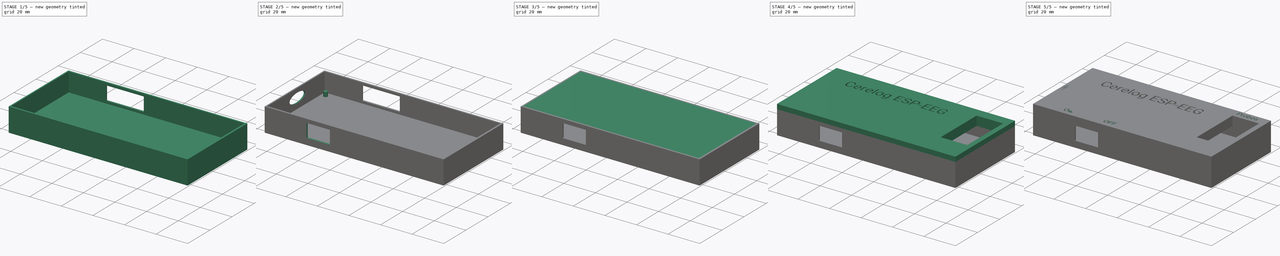
[diagram: build sequence overview — one tinted view per stage of 5, left to right]
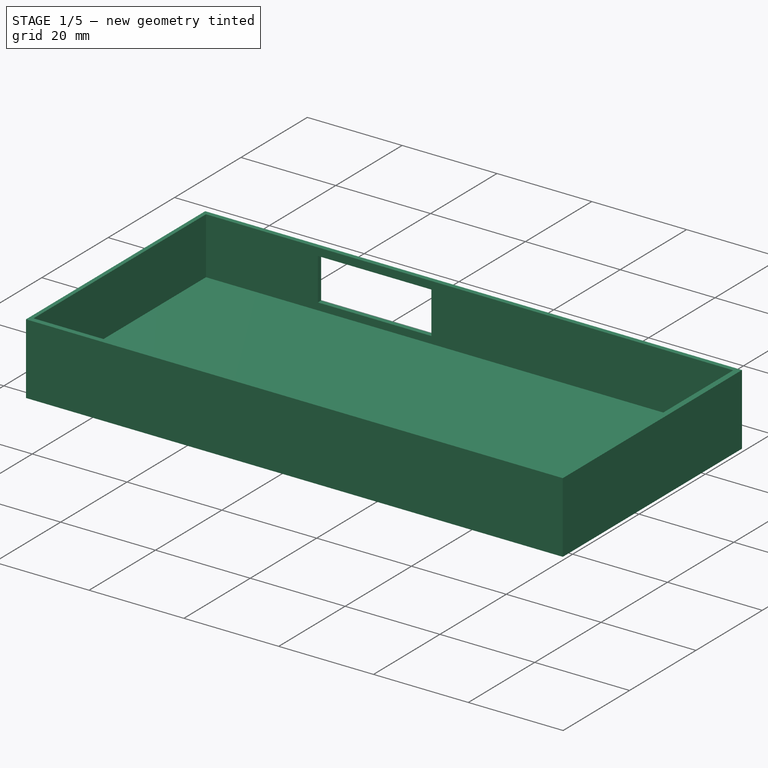
[diagram: stage 1 of 5 — iso view after this stage's code; geometry added in this stage tinted green]
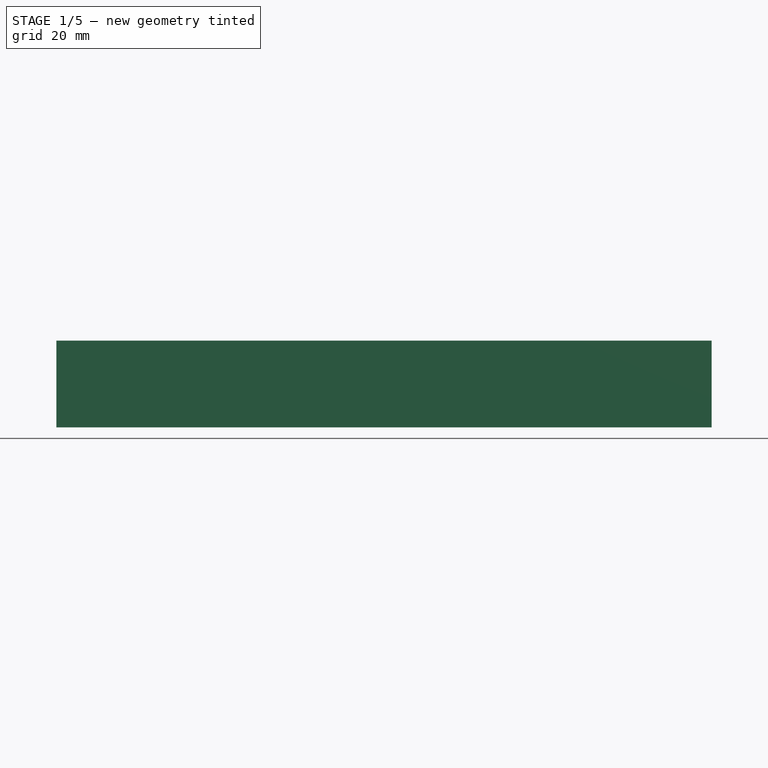
[diagram: stage 1 of 5 — front view after this stage's code; geometry added in this stage tinted green]
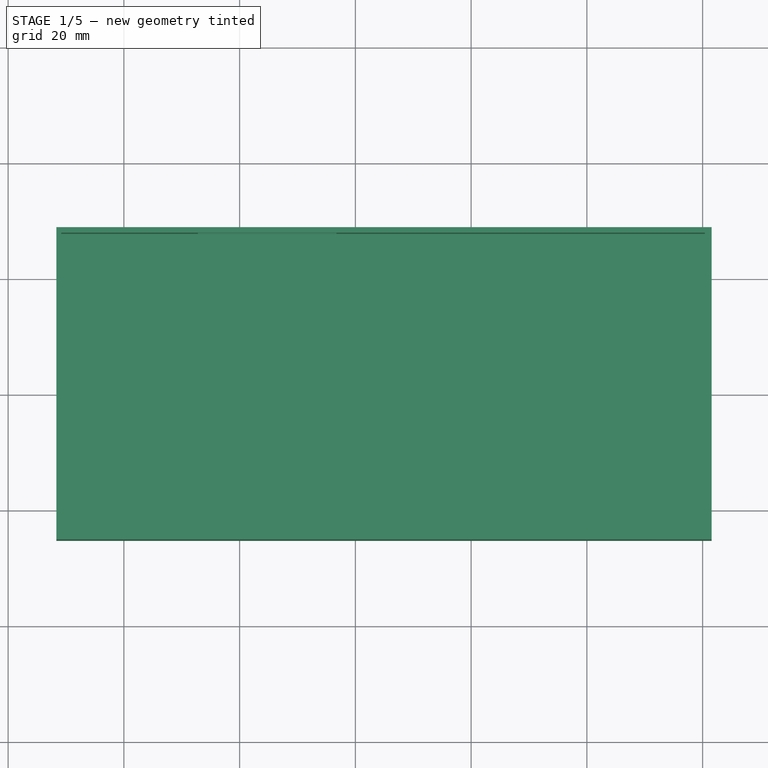
[diagram: stage 1 of 5 — top view after this stage's code; geometry added in this stage tinted green]
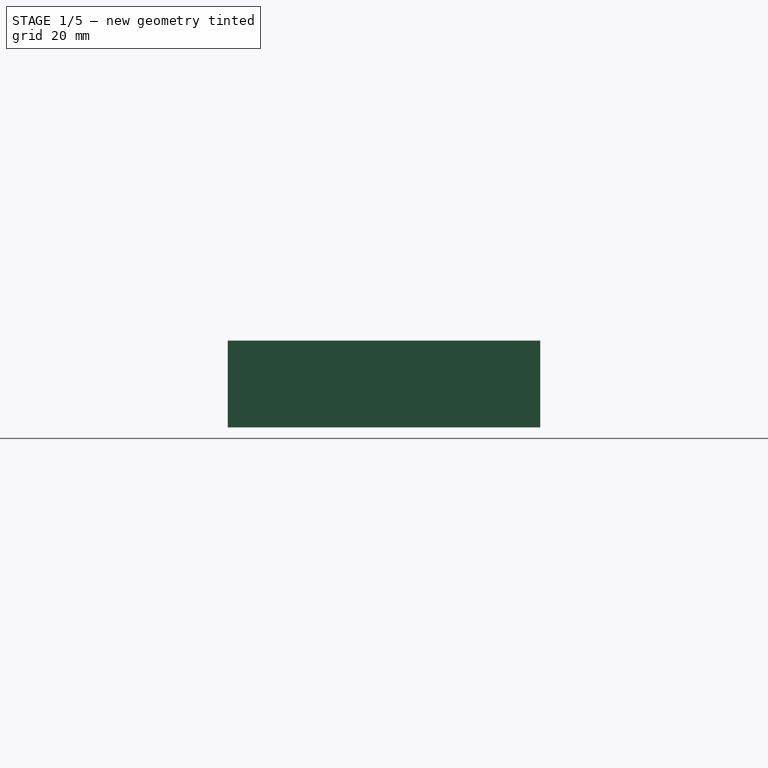
[diagram: stage 1 of 5 — right view after this stage's code; geometry added in this stage tinted green]
FCSTD DOCUMENT  (FreeCAD 1.0R39319 (Git))
Label: Case
License: All rights reserved
LicenseURL: https://en.wikipedia.org/wiki/All_rights_reserved
objects: Sketcher::SketchObject×11, PartDesign::Pocket×10, Part::Feature×6, Part::Part2DObjectPython×6, PartDesign::Pad×5, PartDesign::Body×2, App::Part×1, PartDesign::ShapeBinder×1
note: 82 computed .brp shape members not serialized (recipe doc carries the construction recipe); baked Part::Feature solids carry a one-line shape summary decoded from their .brp

FEATURE [Part::Feature] Part__Feature  label="PZ254V-12-24P"
  Placement = pos=(209.482,-65.94,1.595) rot=(0,0,1;1.5708rad)
  shape: bbox 5 x 30.49 x 11.54 mm, 744 faces (baked)
FEATURE [Part::Feature] Part__Feature001  label="SK22D02L5"
  Placement = pos=(140,-88.25,5.595) rot=(0,0,1;0rad)
  shape: bbox 10.8 x 10.58 x 8.202 mm, 454 faces, 14 solids (baked)
FEATURE [Part::Feature] Part__Feature002  label="ADS1299-6PAG"
  Placement = pos=(182.49,-66.923,1.595) rot=(0,0.707107,0.707107;3.14159rad)
  shape: bbox 12 x 12 x 1.2 mm, 929 faces, 66 solids (baked)
FEATURE [Part::Feature] Part__Feature003  label="ESP32-WROOM-32-N4"
  Placement = pos=(148.1,-52.49,1.595) rot=(0,0,1;0rad)
  shape: bbox 18 x 25.5 x 3.12 mm, 754 faces (baked)
FEATURE [Part::Feature] Part__Feature004  label="TYPE-C-16PIN-2MD-073"
  Placement = pos=(116.532,-69,3.345) rot=(0,0,-1;1.5708rad)
  shape: bbox 7.581 x 8.941 x 4.162 mm, 538 faces, 15 solids (baked)
FEATURE [Part::Feature] Part__Feature005  label="V6_EEG_1_3_Branch_PCB"
  shape: bbox 110.3 x 49.5 x 1.51 mm, 73 faces (baked)
FEATURE [App::Part] model_for_casedev_1  label="model_for_casedev 1"
  Group = -> [Part__Feature,Part__Feature001,Part__Feature002,Part__Feature003,Part__Feature004,Part__Feature005]
  Origin = -> Origin
  Placement = pos=(-163,72,6) rot=(0,0,1;0rad)
FEATURE [Sketcher::SketchObject] Sketch
  ArcFitTolerance = 1e-06
  AttachmentSupport = -> [XY_Plane001]
  FullyConstrained = true
  MakeInternals = false
  MapMode = 5
  sketch-geometry (4):
    g0: LineSegment StartX=-51.6668 StartY=28.7766 StartZ=0 EndX=-51.6668 EndY=-25.2034 EndZ=0
    g1: LineSegment StartX=-51.6668 StartY=-25.2034 StartZ=0 EndX=61.5632 EndY=-25.2034 EndZ=0
    g2: LineSegment StartX=61.5632 StartY=-25.2034 StartZ=0 EndX=61.5632 EndY=28.7766 EndZ=0
    g3: LineSegment StartX=61.5632 StartY=28.7766 StartZ=0 EndX=-51.6668 EndY=28.7766 EndZ=0
  constraints (11):
    c: Coincident(g0,g1)
    c: Coincident(g1,g2)
    c: Coincident(g2,g3)
    c: Coincident(g3,g0)
    c: Vertical(g0)
    c: Vertical(g2)
    c: Horizontal(g1)
    c: Horizontal(g3)
    c: DistanceY(g0,g0) = 53.98
    c: DistanceX(g3,g3) = 113.23
    c: Block(g3)
FEATURE [PartDesign::Pad] Pad
  Direction = (0,0,1)
  Length = 15
  Length2 = 10
  Profile = -> Sketch
  ReferenceAxis = -> Sketch [N_Axis]
  Refine = true
  Suppressed = false
  Type = 0
FEATURE [Sketcher::SketchObject] Sketch001
  ArcFitTolerance = 1e-06
  AttachmentSupport = -> [Pad]
  FullyConstrained = true
  MakeInternals = false
  MapMode = 5
  Placement = pos=(0,0,15) rot=(0,0,1;0rad)
  sketch-geometry (4):
    g0: LineSegment StartX=-50.8309 StartY=27.8122 StartZ=0 EndX=-50.8309 EndY=-24.1321 EndZ=0
    g1: LineSegment StartX=-50.8309 StartY=-24.1321 StartZ=0 EndX=60.3927 EndY=-24.1321 EndZ=0
    g2: LineSegment StartX=60.3927 StartY=-24.1321 StartZ=0 EndX=60.3927 EndY=27.8122 EndZ=0
    g3: LineSegment StartX=60.3927 StartY=27.8122 StartZ=0 EndX=-50.8309 EndY=27.8122 EndZ=0
  constraints (10):
    c: Coincident(g0,g1)
    c: Coincident(g1,g2)
    c: Coincident(g2,g3)
    c: Coincident(g3,g0)
    c: Vertical(g0)
    c: Vertical(g2)
    c: Horizontal(g1)
    c: Horizontal(g3)
    c: Block(g0)
    c: Block(g3)
FEATURE [PartDesign::Pocket] Pocket
  BaseFeature = -> Pad
  Direction = (0,0,-1)
  Length = 12
  Length2 = 5
  Profile = -> Sketch001
  ReferenceAxis = -> Sketch001 [N_Axis]
  Refine = true
  Suppressed = false
  Type = 0
FEATURE [Sketcher::SketchObject] Sketch002
  ArcFitTolerance = 1e-06
  AttachmentSupport = -> [Pocket]
  FullyConstrained = true
  MakeInternals = false
  MapMode = 5
  Placement = pos=(0,28.7766,0) rot=(0,0.707107,0.707107;3.14159rad)
  sketch-geometry (4):
    g0: LineSegment StartX=3.27547 StartY=13.3664 StartZ=0 EndX=3.27547 EndY=4.50903 EndZ=0
    g1: LineSegment StartX=3.27547 StartY=4.50903 StartZ=0 EndX=27.2143 EndY=4.50903 EndZ=0
    g2: LineSegment StartX=27.2143 StartY=4.50903 StartZ=0 EndX=27.2143 EndY=13.3664 EndZ=0
    g3: LineSegment StartX=27.2143 StartY=13.3664 StartZ=0 EndX=3.27547 EndY=13.3664 EndZ=0
  constraints (10):
    c: Coincident(g0,g1)
    c: Coincident(g1,g2)
    c: Coincident(g2,g3)
    c: Coincident(g3,g0)
    c: Vertical(g0)
    c: Vertical(g2)
    c: Horizontal(g1)
    c: Horizontal(g3)
    c: Block(g3)
    c: Block(g0)
FEATURE [PartDesign::Pocket] Pocket001
  BaseFeature = -> Pocket
  Direction = (0,-1,2e-16)
  Length = 5
  Length2 = 5
  Profile = -> Sketch002
  ReferenceAxis = -> Sketch002 [N_Axis]
  Refine = true
  Suppressed = false
  Type = 0
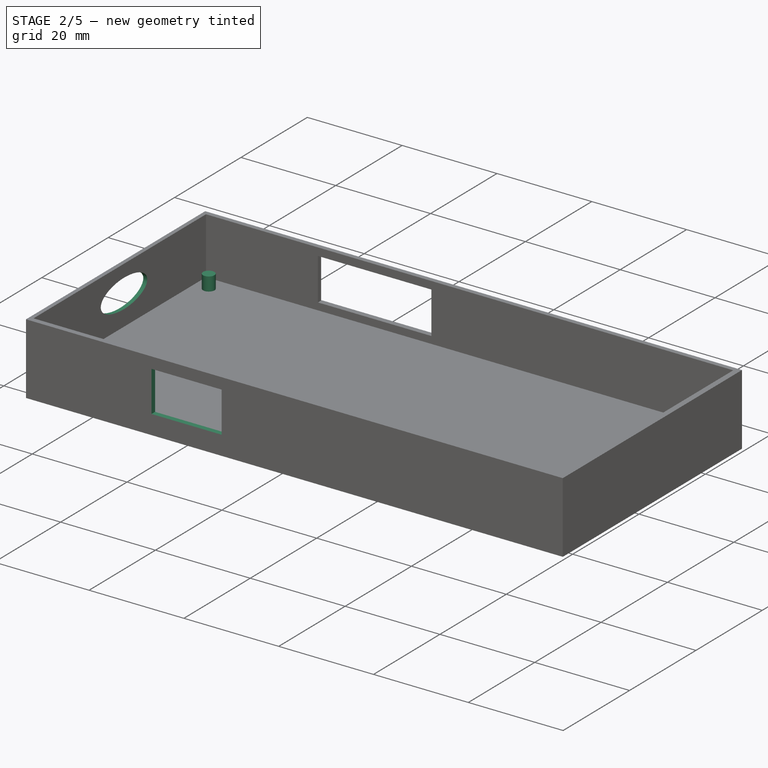
[diagram: stage 2 of 5 — iso view after this stage's code; geometry added in this stage tinted green]
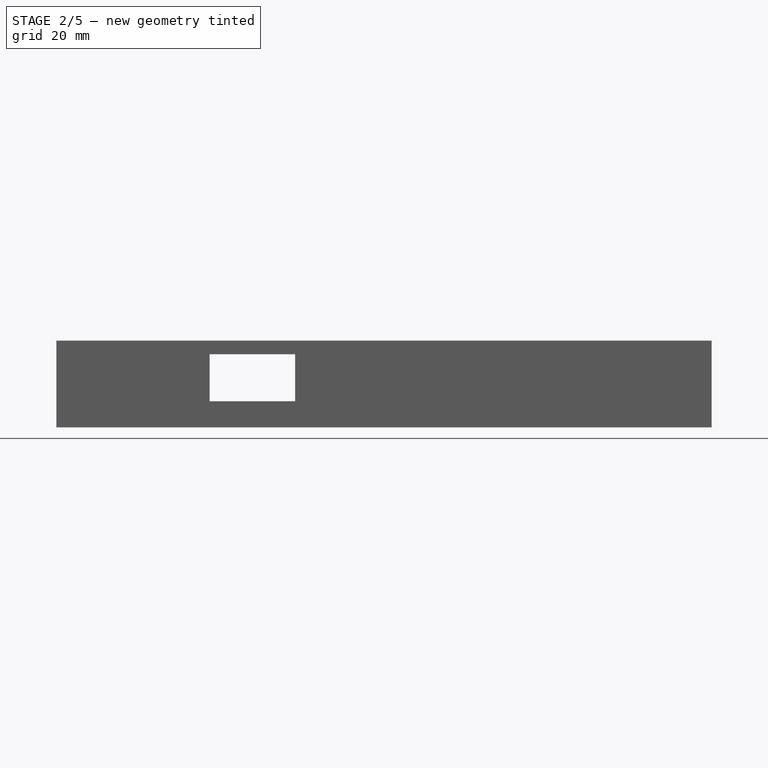
[diagram: stage 2 of 5 — front view after this stage's code; geometry added in this stage tinted green]
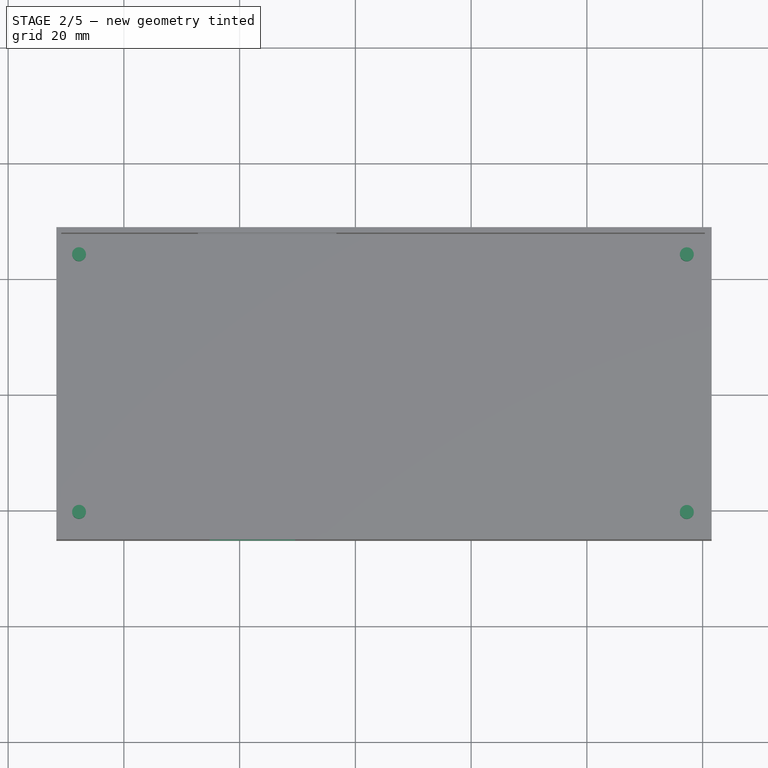
[diagram: stage 2 of 5 — top view after this stage's code; geometry added in this stage tinted green]
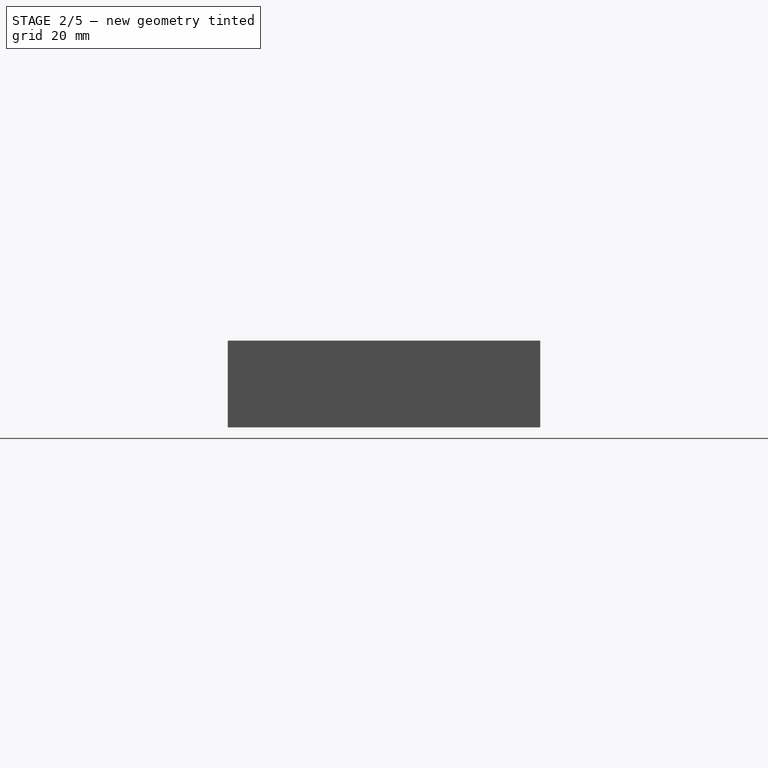
[diagram: stage 2 of 5 — right view after this stage's code; geometry added in this stage tinted green]
FEATURE [Sketcher::SketchObject] Sketch003
  ArcFitTolerance = 1e-06
  AttachmentSupport = -> [Pocket001]
  FullyConstrained = true
  MakeInternals = false
  MapMode = 5
  Placement = pos=(0,-25.2034,0) rot=(1,0,0;1.5708rad)
  sketch-geometry (4):
    g0: LineSegment StartX=-25.1912 StartY=12.6374 StartZ=0 EndX=-25.1912 EndY=4.03225 EndZ=0
    g1: LineSegment StartX=-25.1912 StartY=4.03225 StartZ=0 EndX=-10.4011 EndY=4.03225 EndZ=0
    g2: LineSegment StartX=-10.4011 StartY=4.03225 StartZ=0 EndX=-10.4011 EndY=12.6374 EndZ=0
    g3: LineSegment StartX=-10.4011 StartY=12.6374 StartZ=0 EndX=-25.1912 EndY=12.6374 EndZ=0
  constraints (10):
    c: Coincident(g0,g1)
    c: Coincident(g1,g2)
    c: Coincident(g2,g3)
    c: Coincident(g3,g0)
    c: Vertical(g0)
    c: Vertical(g2)
    c: Horizontal(g1)
    c: Horizontal(g3)
    c: Block(g3)
    c: Block(g0)
FEATURE [PartDesign::Pocket] Pocket002
  BaseFeature = -> Pocket001
  Direction = (0,1,-2e-16)
  Length = 5
  Length2 = 5
  Profile = -> Sketch003
  ReferenceAxis = -> Sketch003 [N_Axis]
  Refine = true
  Suppressed = false
  Type = 0
FEATURE [Sketcher::SketchObject] Sketch004
  ArcFitTolerance = 1e-06
  AttachmentSupport = -> [Pocket002]
  FullyConstrained = true
  MakeInternals = false
  MapMode = 5
  Placement = pos=(-51.6668,0,0) rot=(0.57735,-0.57735,-0.57735;2.0944rad)
  sketch-geometry (5):
    g0: Ellipse CenterX=-3.12406 CenterY=9.34204 CenterZ=0 NormalX=0 NormalY=0 NormalZ=1 MajorRadius=6.99533 MinorRadius=2.98862 AngleXU=-0.00421926
    g1: LineSegment [constr] StartX=3.8712 StartY=9.31253 StartZ=0 EndX=-10.1193 EndY=9.37156 EndZ=0
    g2: LineSegment [constr] StartX=-3.11145 StartY=12.3306 StartZ=0 EndX=-3.13667 EndY=6.35345 EndZ=0
    g3: GeomPoint [constr] X=3.20066 Y=9.31536 Z=0
    g4: GeomPoint [constr] X=-9.44878 Y=9.36873 Z=0
  constraints (2):
    c: InternalAlignment(g1-g4 -> g0) x4
    c: Block(g0)
FEATURE [PartDesign::Pocket] Pocket003
  BaseFeature = -> Pocket002
  Direction = (1,0,0)
  Length = 5
  Length2 = 5
  Profile = -> Sketch004
  ReferenceAxis = -> Sketch004 [N_Axis]
  Refine = true
  Suppressed = false
  Type = 0
FEATURE [Sketcher::SketchObject] Sketch005
  ArcFitTolerance = 1e-06
  AttachmentSupport = -> [Pocket003]
  FullyConstrained = true
  MakeInternals = false
  MapMode = 5
  Placement = pos=(0,0,3) rot=(0,0,1;0rad)
  sketch-geometry (4):
    g0: Circle CenterX=-47.7493 CenterY=-20.2643 CenterZ=0 NormalX=0 NormalY=0 NormalZ=1 AngleXU=0 Radius=1.2
    g1: Circle CenterX=57.2732 CenterY=-20.2881 CenterZ=0 NormalX=0 NormalY=0 NormalZ=1 AngleXU=0 Radius=1.2
    g2: Circle CenterX=57.2726 CenterY=24.2424 CenterZ=0 NormalX=0 NormalY=0 NormalZ=1 AngleXU=0 Radius=1.2
    g3: Circle CenterX=-47.7524 CenterY=24.2567 CenterZ=0 NormalX=0 NormalY=0 NormalZ=1 AngleXU=0 Radius=1.2
  constraints (8):
    c: Diameter(g0) = 2.4
    c: Diameter(g1) = 2.4
    c: Diameter(g2) = 2.4
    c: Diameter(g3) = 2.4
    c: Block(g3)
    c: Block(g0)
    c: Block(g2)
    c: Block(g1)
FEATURE [PartDesign::Pad] Pad001
  BaseFeature = -> Pocket003
  Direction = (0,0,1)
  Length = 2.88
  Length2 = 10
  Profile = -> Sketch005
  ReferenceAxis = -> Sketch005 [N_Axis]
  Refine = true
  Suppressed = false
  Type = 0
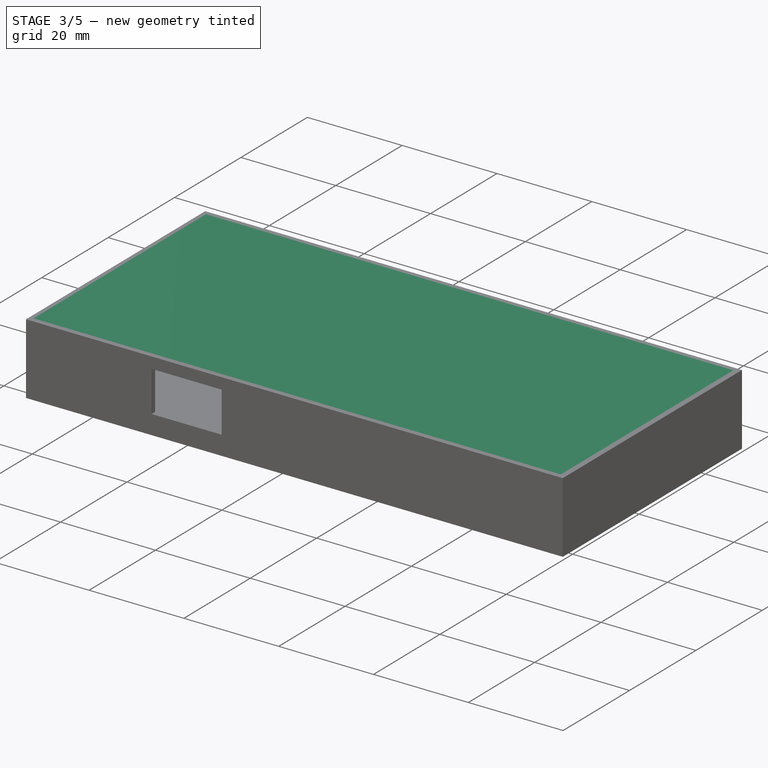
[diagram: stage 3 of 5 — iso view after this stage's code; geometry added in this stage tinted green]
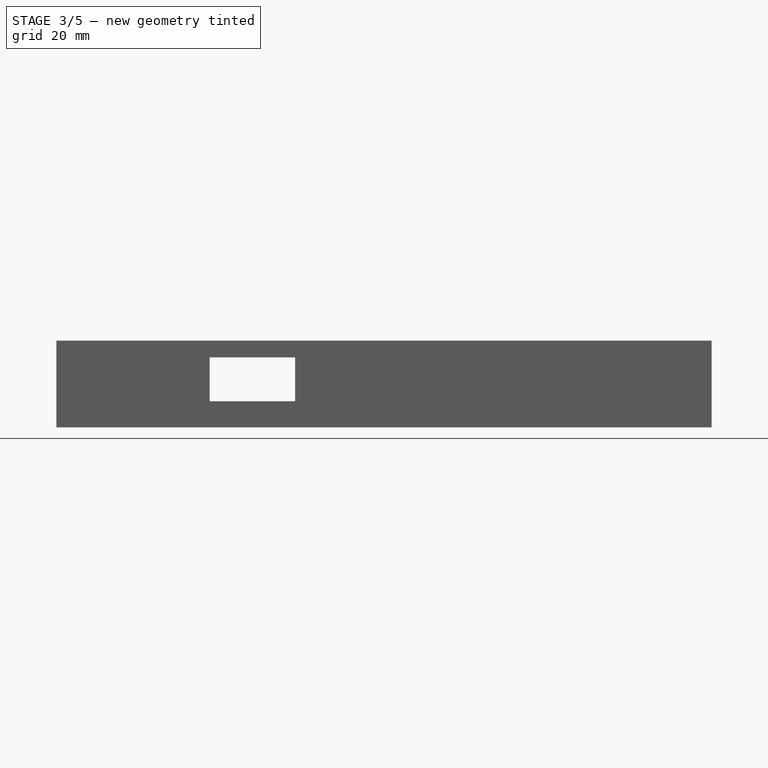
[diagram: stage 3 of 5 — front view after this stage's code; geometry added in this stage tinted green]
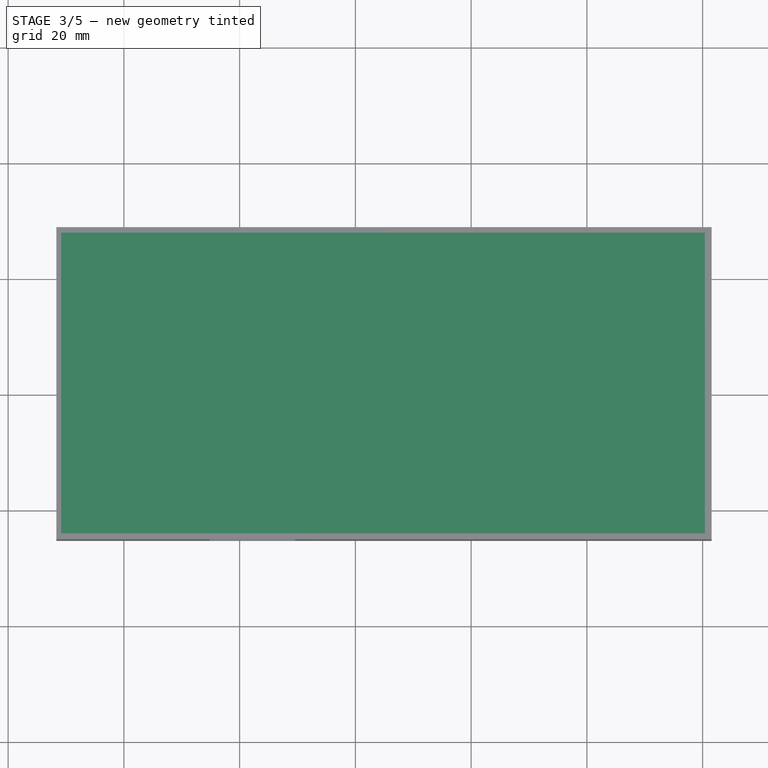
[diagram: stage 3 of 5 — top view after this stage's code; geometry added in this stage tinted green]
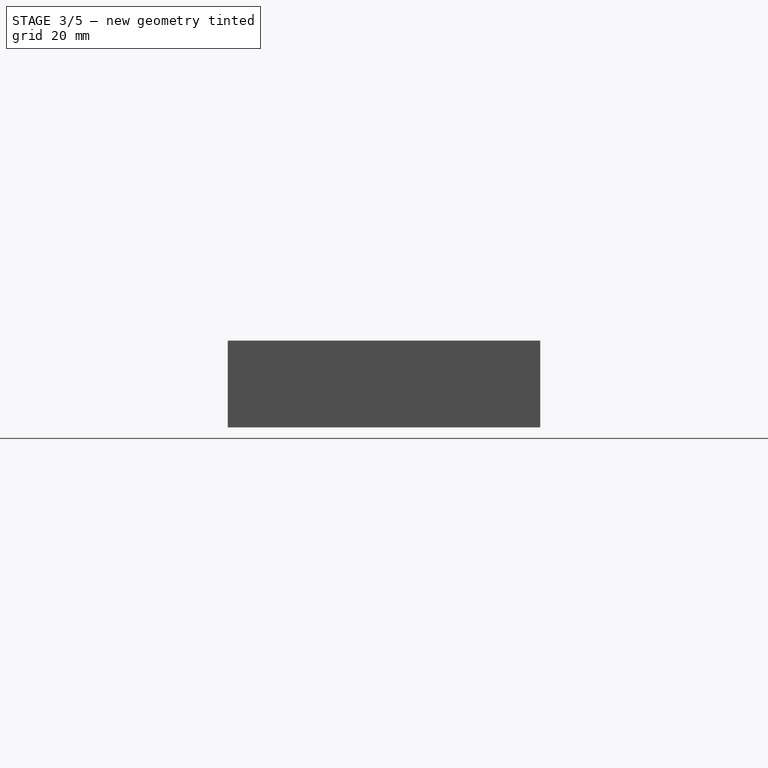
[diagram: stage 3 of 5 — right view after this stage's code; geometry added in this stage tinted green]
FEATURE [Sketcher::SketchObject] Sketch006
  ArcFitTolerance = 1e-06
  AttachmentSupport = -> [Pad001]
  FullyConstrained = true
  MakeInternals = false
  MapMode = 5
  Placement = pos=(0,0,5.88) rot=(0,0,1;0rad)
  sketch-geometry (4):
    g0: Circle CenterX=-47.762 CenterY=24.263 CenterZ=0 NormalX=0 NormalY=0 NormalZ=1 AngleXU=0 Radius=0.95
    g1: Circle CenterX=57.2987 CenterY=-20.2759 CenterZ=0 NormalX=0 NormalY=0 NormalZ=1 AngleXU=0 Radius=0.95
    g2: Circle CenterX=57.2828 CenterY=24.2674 CenterZ=0 NormalX=0 NormalY=0 NormalZ=1 AngleXU=0 Radius=0.95
    g3: Circle CenterX=-47.7467 CenterY=-20.25 CenterZ=0 NormalX=0 NormalY=0 NormalZ=1 AngleXU=0 Radius=0.95
  constraints (8):
    c: Diameter(g1) = 1.9
    c: Diameter(g2) = 1.9
    c: Diameter(g3) = 1.9
    c: Block(g3)
    c: Block(g2)
    c: Block(g1)
    c: Diameter(g0) = 1.9
    c: Block(g0)
FEATURE [PartDesign::Pad] Pad002
  BaseFeature = -> Pad001
  Direction = (0,0,1)
  Length = 5.4
  Length2 = 10
  Profile = -> Sketch006
  ReferenceAxis = -> Sketch006 [N_Axis]
  Refine = true
  Suppressed = false
  Type = 0
FEATURE [PartDesign::ShapeBinder] ReferencePad002
  Support = -> [Pad002]
  TraceSupport = false
FEATURE [Sketcher::SketchObject] Sketch007
  ArcFitTolerance = 1e-06
  AttachmentSupport = -> [ReferencePad002]
  FullyConstrained = true
  MakeInternals = false
  MapMode = 5
  Placement = pos=(0,0,15) rot=(0,0,1;0rad)
  sketch-geometry (4):
    g0: LineSegment StartX=-50.8324 StartY=27.8176 StartZ=0 EndX=-50.8324 EndY=-24.1251 EndZ=0
    g1: LineSegment StartX=-50.8324 StartY=-24.1251 StartZ=0 EndX=60.4012 EndY=-24.1251 EndZ=0
    g2: LineSegment StartX=60.4012 StartY=-24.1251 StartZ=0 EndX=60.4012 EndY=27.8176 EndZ=0
    g3: LineSegment StartX=60.4012 StartY=27.8176 StartZ=0 EndX=-50.8324 EndY=27.8176 EndZ=0
  constraints (10):
    c: Coincident(g0,g1)
    c: Coincident(g1,g2)
    c: Coincident(g2,g3)
    c: Coincident(g3,g0)
    c: Vertical(g0)
    c: Vertical(g2)
    c: Horizontal(g1)
    c: Horizontal(g3)
    c: Block(g3)
    c: Block(g0)
FEATURE [PartDesign::Pad] Pad003
  Direction = (0,0,-1)
  Length = 2.9
  Length2 = 10
  Profile = -> Sketch007
  ReferenceAxis = -> Sketch007 [N_Axis]
  Refine = true
  Suppressed = false
  Type = 0
  UseCustomVector = true
FEATURE [PartDesign::Body] Body001  label="Lid"
  AllowCompound = false
  Group = -> [ReferencePad002,Sketch007,Pad003,Sketch009,Pad004,Sketch010,Pocket004,ShapeString,Pocket005,ShapeString001,ShapeString002,ShapeString003,Pocket006,Pocket007,Pocket008]
  Origin = -> Origin002
  Tip = -> Pocket008
FEATURE [Sketcher::SketchObject] Sketch011
  ArcFitTolerance = 1e-06
  AttachmentSupport = -> [Pad002]
  FullyConstrained = true
  MakeInternals = false
  MapMode = 5
  Placement = pos=(-51.6668,0,0) rot=(0.57735,-0.57735,-0.57735;2.0944rad)
  sketch-geometry (4):
    g0: LineSegment StartX=7.44353 StartY=11.8734 StartZ=0 EndX=7.44353 EndY=5.45468 EndZ=0
    g1: LineSegment StartX=7.44353 StartY=5.45468 StartZ=0 EndX=16.6705 EndY=5.45468 EndZ=0
    g2: LineSegment StartX=16.6705 StartY=5.45468 StartZ=0 EndX=16.6705 EndY=11.8734 EndZ=0
    g3: LineSegment StartX=16.6705 StartY=11.8734 StartZ=0 EndX=7.44353 EndY=11.8734 EndZ=0
  constraints (10):
    c: Coincident(g0,g1)
    c: Coincident(g1,g2)
    c: Coincident(g2,g3)
    c: Coincident(g3,g0)
    c: Vertical(g0)
    c: Vertical(g2)
    c: Horizontal(g1)
    c: Horizontal(g3)
    c: Block(g0)
    c: Block(g3)
FEATURE [PartDesign::Pocket] Pocket010
  BaseFeature = -> Pad002
  Direction = (1,0,0)
  Length = 5
  Length2 = 5
  Profile = -> Sketch011
  ReferenceAxis = -> Sketch011 [N_Axis]
  Refine = true
  Suppressed = false
  Type = 0
FEATURE [Part::Part2DObjectPython] ShapeString016  label="Battery"  # Draft 2D object (typed FeaturePython)
  FontFile = <userpath>/Downloads/Roboto/Roboto-VariableFont_wdth,wght.ttf
  Fuse = false
  Justification = 6
  JustificationReference = 0
  KeepLeftMargin = false
  MakeFace = true
  ObliqueAngle = 0
  Placement = pos=(-51.49,-9.51,13) rot=(-0.57735,0.57735,0.57735;4.18879rad)
  ScaleToSize = true
  Size = 1.3
  String = Battery
  Tracking = 0
FEATURE [Part::Part2DObjectPython] ShapeString017  label="Battery001"  # Draft 2D object (typed FeaturePython)
  FontFile = <userpath>/Downloads/Roboto/Roboto-VariableFont_wdth,wght.ttf
  Fuse = false
  Justification = 6
  JustificationReference = 0
  KeepLeftMargin = false
  MakeFace = true
  ObliqueAngle = 0
  Placement = pos=(-51.49,-8.51,3) rot=(-0.57735,0.57735,0.57735;4.18879rad)
  ScaleToSize = true
  Size = 2
  String = +       -
  Tracking = 0
FEATURE [PartDesign::Body] Body
  AllowCompound = false
  Group = -> [Sketch,Pad,Sketch001,Pocket,Sketch002,Pocket001,Sketch003,Pocket002,Sketch004,Pocket003,Sketch005,Pad001,Sketch006,Pad002,Sketch011,Pocket010,ShapeString016,ShapeString017]
  Origin = -> Origin001
  Tip = -> Pocket010
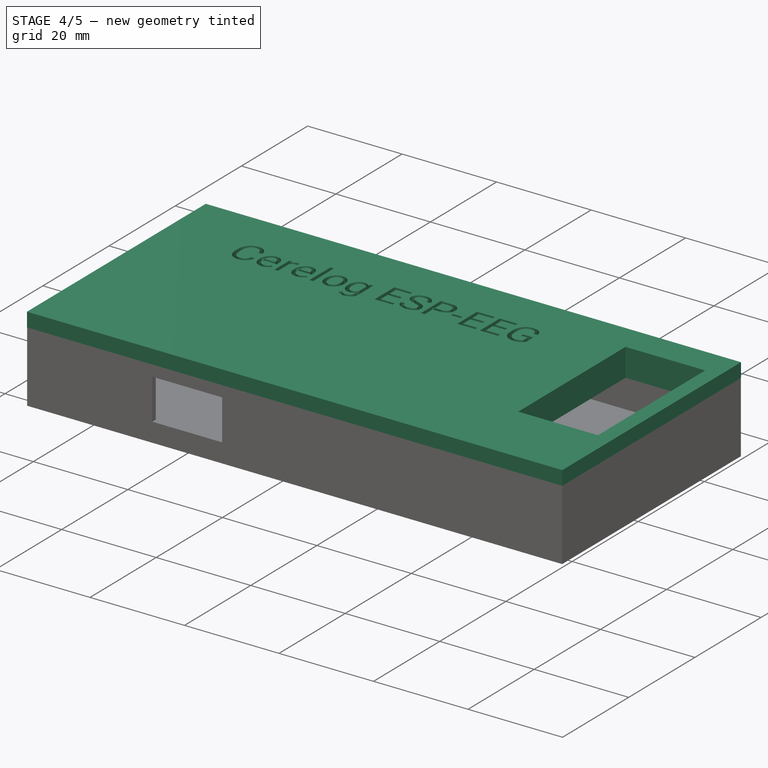
[diagram: stage 4 of 5 — iso view after this stage's code; geometry added in this stage tinted green]
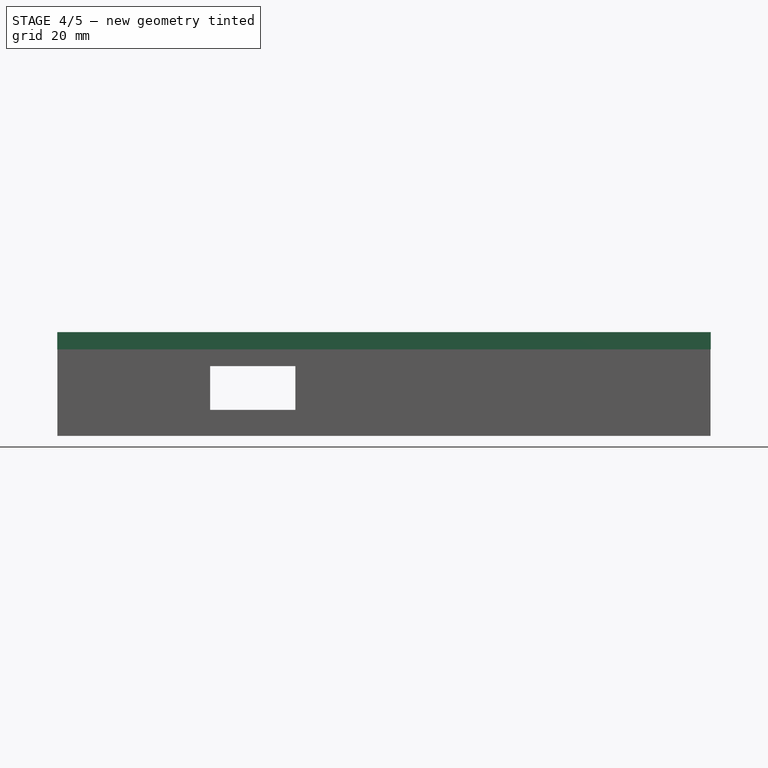
[diagram: stage 4 of 5 — front view after this stage's code; geometry added in this stage tinted green]
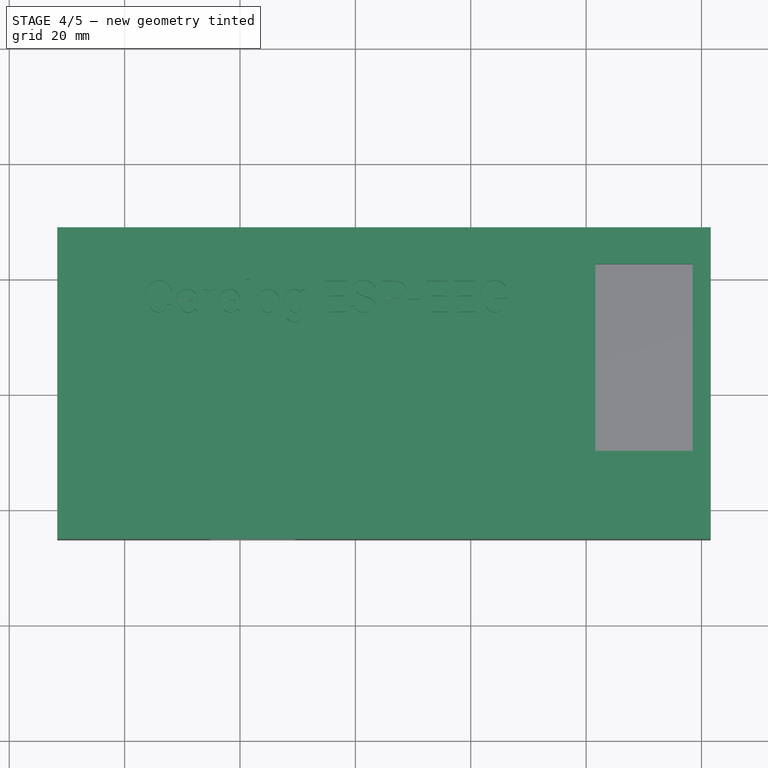
[diagram: stage 4 of 5 — top view after this stage's code; geometry added in this stage tinted green]
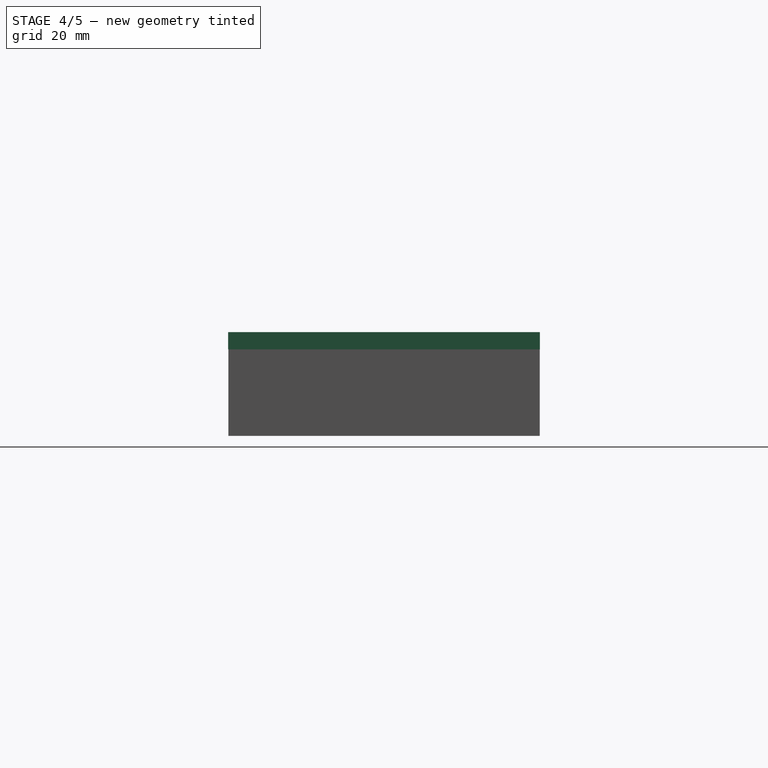
[diagram: stage 4 of 5 — right view after this stage's code; geometry added in this stage tinted green]
FEATURE [Sketcher::SketchObject] Sketch009
  ArcFitTolerance = 1e-06
  AttachmentSupport = -> [ReferencePad002]
  FullyConstrained = true
  MakeInternals = false
  MapMode = 5
  Placement = pos=(0,0,15) rot=(0,0,1;0rad)
  sketch-geometry (4):
    g0: LineSegment StartX=-51.6804 StartY=28.7912 StartZ=0 EndX=-51.6804 EndY=-25.2429 EndZ=0
    g1: LineSegment StartX=-51.6804 StartY=-25.2429 StartZ=0 EndX=61.5987 EndY=-25.2429 EndZ=0
    g2: LineSegment StartX=61.5987 StartY=-25.2429 StartZ=0 EndX=61.5987 EndY=28.7912 EndZ=0
    g3: LineSegment StartX=61.5987 StartY=28.7912 StartZ=0 EndX=-51.6804 EndY=28.7912 EndZ=0
  constraints (10):
    c: Coincident(g0,g1)
    c: Coincident(g1,g2)
    c: Coincident(g2,g3)
    c: Coincident(g3,g0)
    c: Vertical(g0)
    c: Vertical(g2)
    c: Horizontal(g1)
    c: Horizontal(g3)
    c: Block(g3)
    c: Block(g0)
FEATURE [PartDesign::Pad] Pad004
  BaseFeature = -> Pad003
  Direction = (0,0,1)
  Length = 3
  Length2 = 10
  Profile = -> Sketch009
  ReferenceAxis = -> Sketch009 [N_Axis]
  Refine = true
  Suppressed = false
  Type = 0
FEATURE [Sketcher::SketchObject] Sketch010
  ArcFitTolerance = 1e-06
  AttachmentSupport = -> [ReferencePad002]
  FullyConstrained = true
  MakeInternals = false
  MapMode = 5
  Placement = pos=(0,0,15) rot=(0,0,1;0rad)
  sketch-geometry (4):
    g0: LineSegment StartX=41.5961 StartY=22.4534 StartZ=0 EndX=41.5961 EndY=-9.97186 EndZ=0
    g1: LineSegment StartX=41.5961 StartY=-9.97186 StartZ=0 EndX=58.4572 EndY=-9.97186 EndZ=0
    g2: LineSegment StartX=58.4572 StartY=-9.97186 StartZ=0 EndX=58.4572 EndY=22.4534 EndZ=0
    g3: LineSegment StartX=58.4572 StartY=22.4534 StartZ=0 EndX=41.5961 EndY=22.4534 EndZ=0
  constraints (10):
    c: Coincident(g0,g1)
    c: Coincident(g1,g2)
    c: Coincident(g2,g3)
    c: Coincident(g3,g0)
    c: Vertical(g0)
    c: Vertical(g2)
    c: Horizontal(g1)
    c: Horizontal(g3)
    c: Block(g3)
    c: Block(g0)
FEATURE [PartDesign::Pocket] Pocket004
  BaseFeature = -> Pad004
  Direction = (0,0,1)
  Length = 15
  Length2 = 5
  Midplane = true
  Profile = -> Sketch010
  ReferenceAxis = -> Sketch010 [N_Axis]
  Refine = true
  Suppressed = false
  Type = 0
  UseCustomVector = true
FEATURE [Part::Part2DObjectPython] ShapeString  label="ESP Text"  # Draft 2D object (typed FeaturePython)
  FontFile = <userpath>/Downloads/Roboto/Roboto-VariableFont_wdth,wght.ttf
  Fuse = false
  Justification = 6
  JustificationReference = 0
  KeepLeftMargin = false
  MakeFace = true
  ObliqueAngle = 0
  Placement = pos=(-36.49,13.49,18) rot=(0,0,1;0rad)
  ScaleToSize = true
  Size = 6
  String = Cerelog ESP-EEG
  Tracking = 0
FEATURE [PartDesign::Pocket] Pocket005
  BaseFeature = -> Pocket004
  Direction = (0,0,-1)
  Length = 3.5
  Length2 = 5
  Profile = -> ShapeString
  ReferenceAxis = -> ShapeString [N_Axis]
  Refine = true
  Suppressed = false
  Type = 0
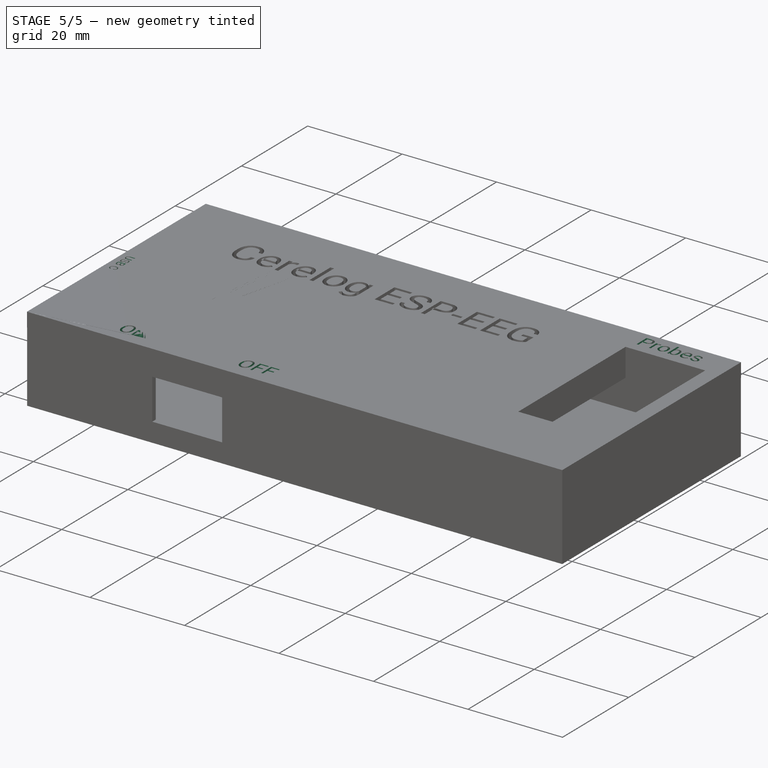
[diagram: stage 5 of 5 — iso view after this stage's code; geometry added in this stage tinted green]
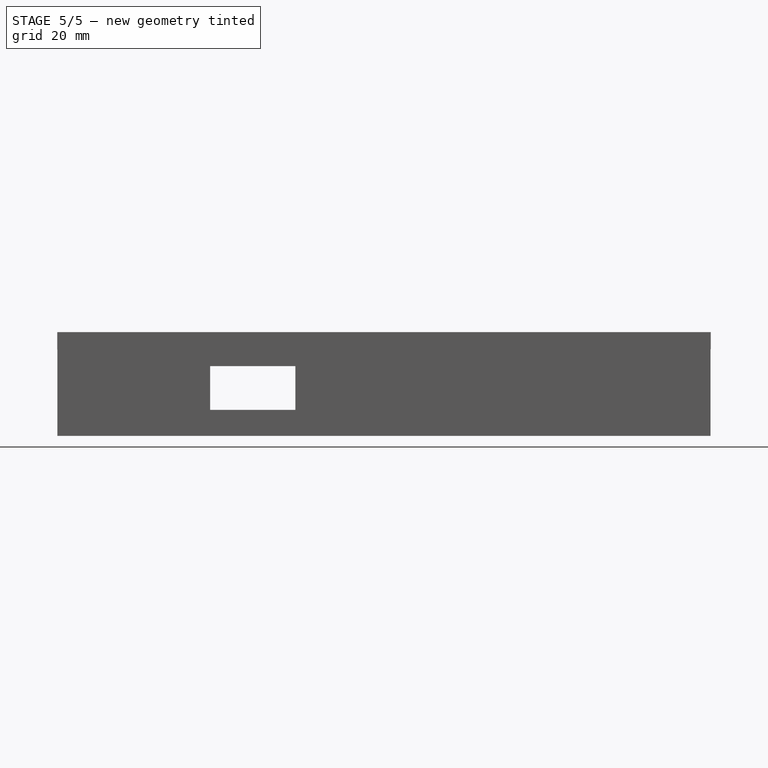
[diagram: stage 5 of 5 — front view after this stage's code; geometry added in this stage tinted green]
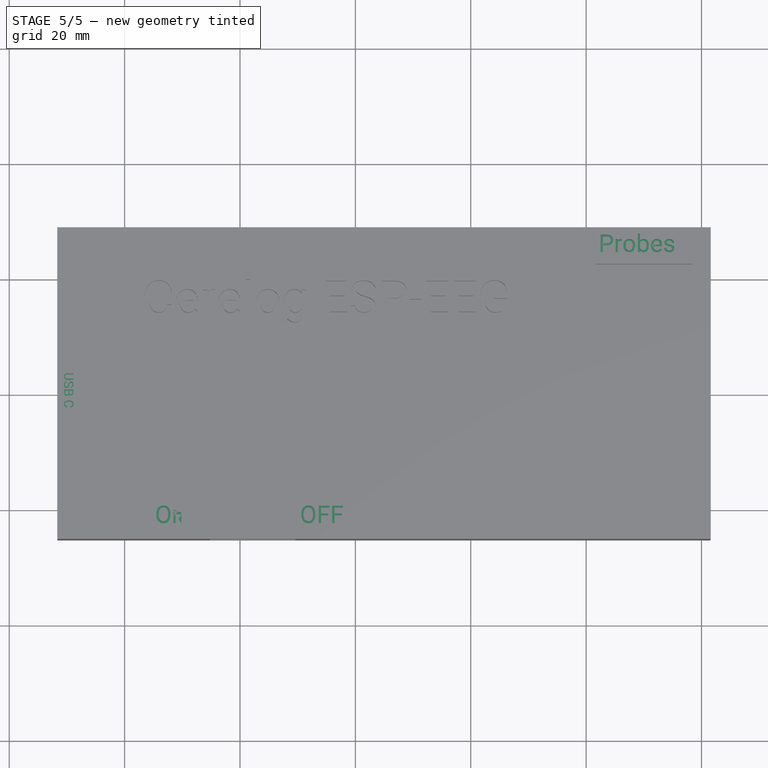
[diagram: stage 5 of 5 — top view after this stage's code; geometry added in this stage tinted green]
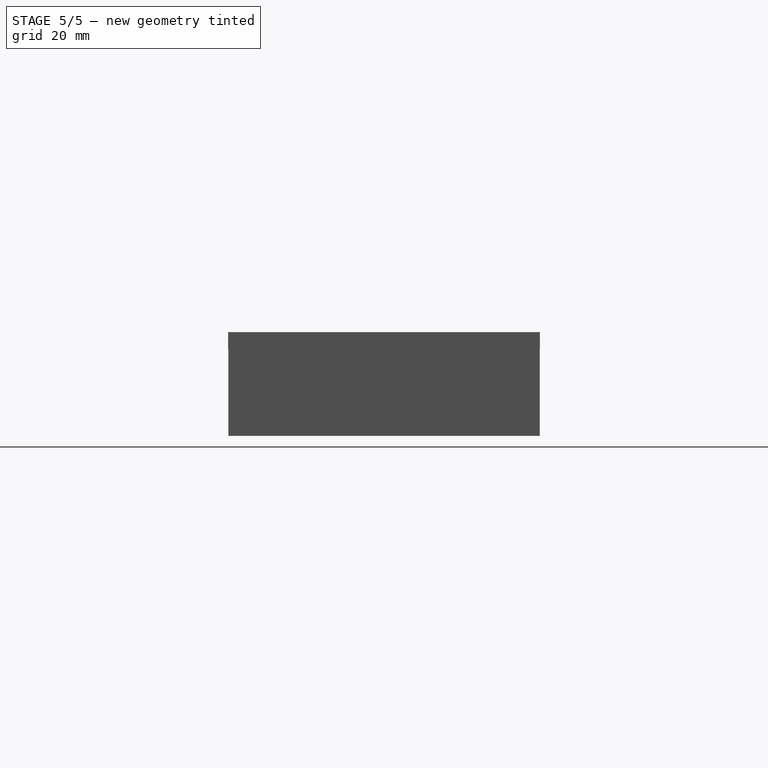
[diagram: stage 5 of 5 — right view after this stage's code; geometry added in this stage tinted green]
FEATURE [Part::Part2DObjectPython] ShapeString001  # Draft 2D object (typed FeaturePython)
  FontFile = <userpath>/Downloads/Roboto/Roboto-VariableFont_wdth,wght.ttf
  Fuse = false
  Justification = 6
  JustificationReference = 0
  KeepLeftMargin = false
  MakeFace = true
  ObliqueAngle = 0
  Placement = pos=(-34.49,-22.51,18) rot=(0,0,1;0rad)
  ScaleToSize = true
  Size = 3
  String = On                   OFF
  Tracking = 0
FEATURE [Part::Part2DObjectPython] ShapeString002  # Draft 2D object (typed FeaturePython)
  FontFile = <userpath>/Downloads/Roboto/Roboto-VariableFont_wdth,wght.ttf
  Fuse = false
  Justification = 6
  JustificationReference = 0
  KeepLeftMargin = false
  MakeFace = true
  ObliqueAngle = 0
  Placement = pos=(-50.49,3.49,18) rot=(0,0,1;4.71239rad)
  ScaleToSize = true
  Size = 1.6
  String = USB C
  Tracking = 0
FEATURE [Part::Part2DObjectPython] ShapeString003  # Draft 2D object (typed FeaturePython)
  FontFile = <userpath>/Downloads/Roboto/Roboto-VariableFont_wdth,wght.ttf
  Fuse = false
  Justification = 6
  JustificationReference = 0
  KeepLeftMargin = false
  MakeFace = true
  ObliqueAngle = 0
  Placement = pos=(42.51,24.49,18) rot=(0,0,1;0rad)
  ScaleToSize = true
  Size = 3
  String = Probes
  Tracking = 0
FEATURE [PartDesign::Pocket] Pocket006  label="on off text"
  BaseFeature = -> Pocket005
  Direction = (0,0,-1)
  Length = 3
  Length2 = 5
  Profile = -> ShapeString001
  ReferenceAxis = -> ShapeString001 [N_Axis]
  Refine = true
  Suppressed = false
  Type = 0
  UseCustomVector = true
FEATURE [PartDesign::Pocket] Pocket007  label="USBC Text"
  BaseFeature = -> Pocket006
  Direction = (0,0,-1)
  Length = 1
  Length2 = 5
  Profile = -> ShapeString002
  ReferenceAxis = -> ShapeString002 [N_Axis]
  Refine = true
  Suppressed = false
  Type = 0
  UseCustomVector = true
FEATURE [PartDesign::Pocket] Pocket008  label="Probe Text"
  BaseFeature = -> Pocket007
  Direction = (0,0,-1)
  Length = 3
  Length2 = 5
  Profile = -> ShapeString003
  ReferenceAxis = -> ShapeString003 [N_Axis]
  Refine = true
  Suppressed = false
  Type = 0
  UseCustomVector = true
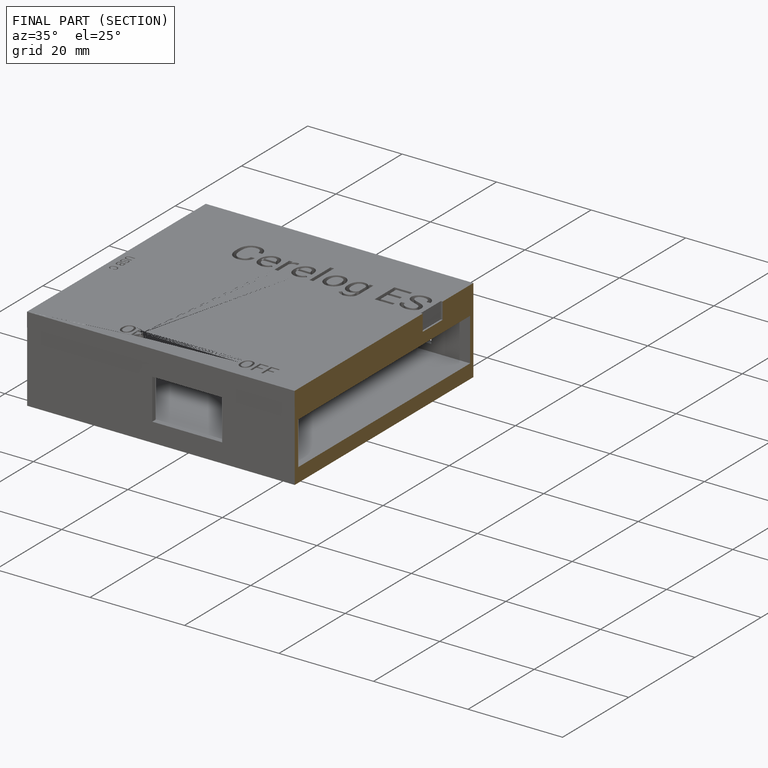
[diagram: finished part — half-section view (interior)]
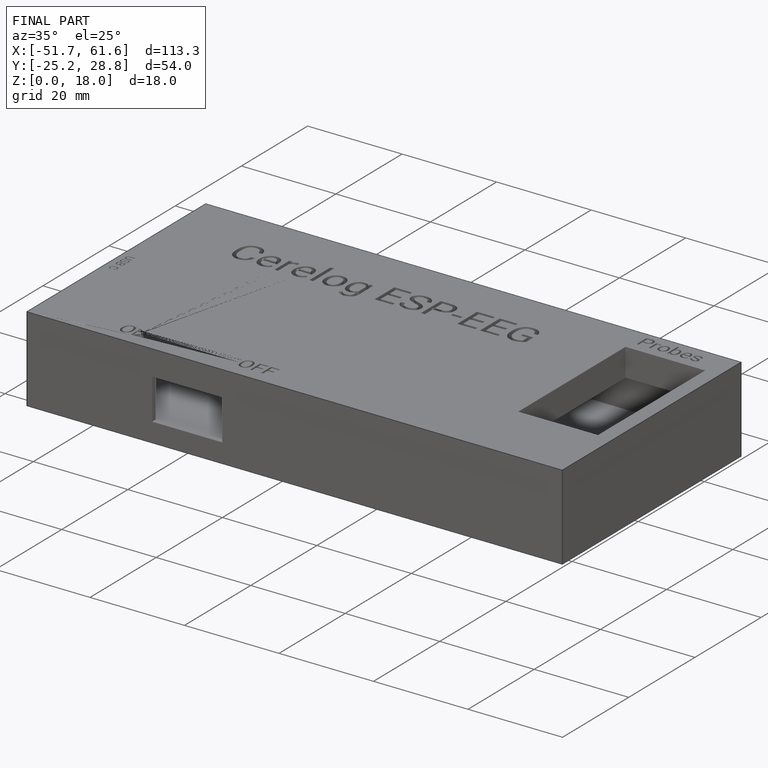
[diagram: finished part — iso view with bounding-box wireframe]
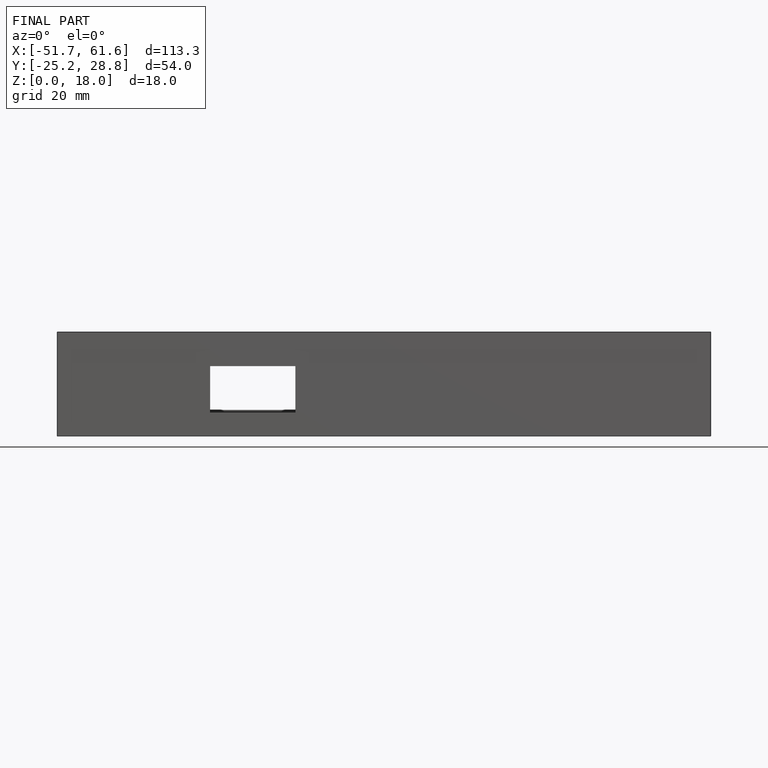
[diagram: finished part — front view with bounding-box wireframe]
